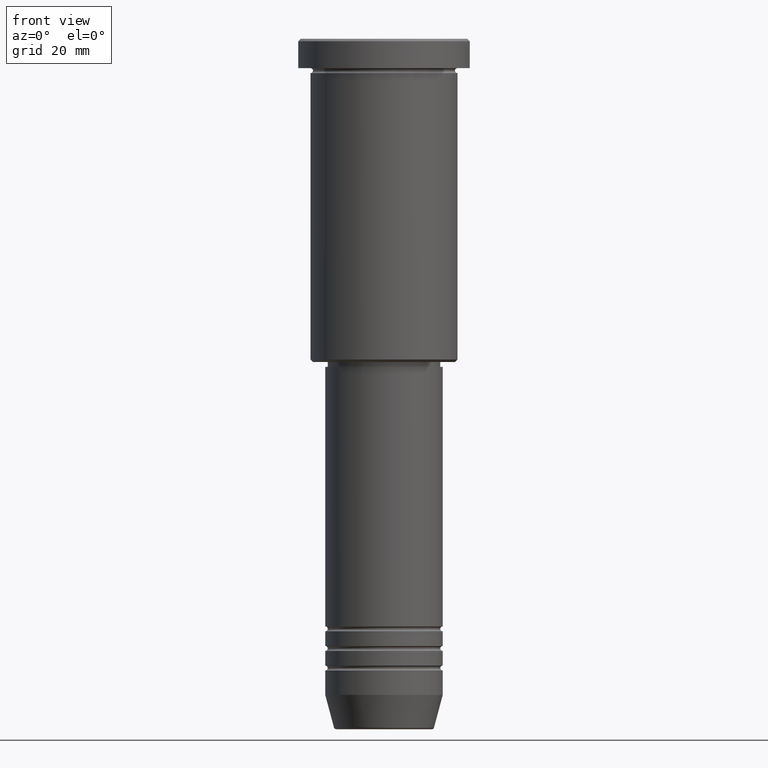
[diagram: clean part render]
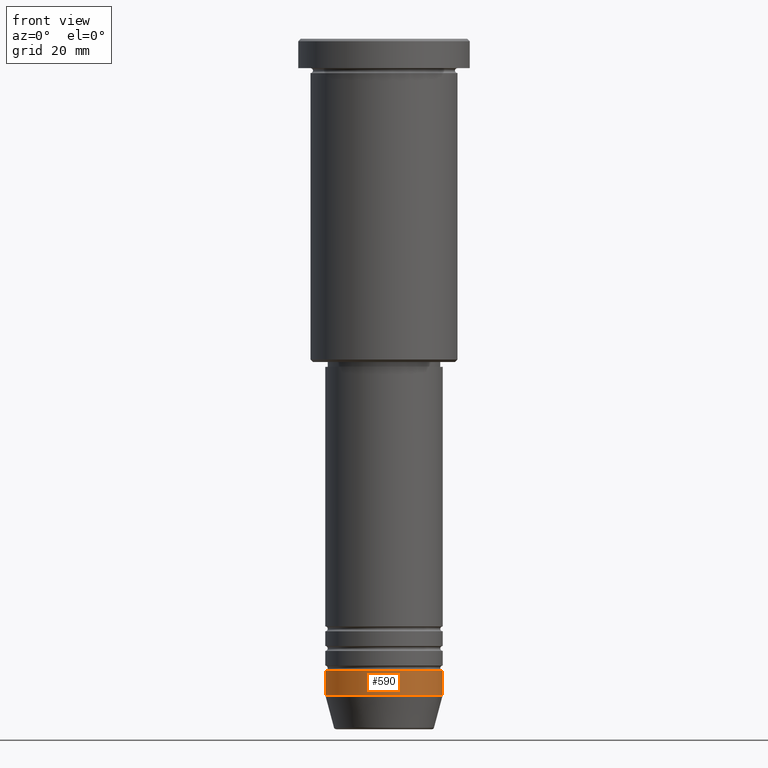
[diagram: same view with one face highlighted and labeled with its STEP entity id]
A machine part, front view. The second image highlights one B-rep face of the part: STEP entity #590.
In plain terms, the highlighted cylindrical surface (partial cylindrical patch) has radius 12 mm, axis along (-0, -0, 1).
Its self-contained STEP definition (entity closure, byte-faithful):
#32 = LINE ( 'NONE', #512, #257 ) ;
#33 = AXIS2_PLACEMENT_3D ( 'NONE', #876, #708, #701 ) ;
#49 = CARTESIAN_POINT ( 'NONE',  ( -12.00000000000000000, 1.469576158976823947E-15, -129.0000000000000000 ) ) ;
#51 = VERTEX_POINT ( 'NONE', #1162 ) ;
#52 = DIRECTION ( 'NONE',  ( -0.000000000000000000, -0.000000000000000000, 1.000000000000000000 ) ) ;
#79 = AXIS2_PLACEMENT_3D ( 'NONE', #755, #874, #943 ) ;
#111 = EDGE_CURVE ( 'NONE', #230, #478, #1006, .T. ) ;
#132 = DIRECTION ( 'NONE',  ( -0.000000000000000000, -0.000000000000000000, 1.000000000000000000 ) ) ;
#140 = LINE ( 'NONE', #326, #464 ) ;
#194 = EDGE_CURVE ( 'NONE', #716, #51, #290, .T. ) ;
#207 = CARTESIAN_POINT ( 'NONE',  ( 0.000000000000000000, 0.000000000000000000, -129.0000000000000000 ) ) ;
#230 = VERTEX_POINT ( 'NONE', #639 ) ;
#257 = VECTOR ( 'NONE', #132, 1000.000000000000000 ) ;
#290 = CIRCLE ( 'NONE', #333, 12.00000000000000000 ) ;
#326 = CARTESIAN_POINT ( 'NONE',  ( 12.00000000000000000, 0.000000000000000000, 0.000000000000000000 ) ) ;
#333 = AXIS2_PLACEMENT_3D ( 'NONE', #207, #644, #366 ) ;
#366 = DIRECTION ( 'NONE',  ( 1.000000000000000000, 0.000000000000000000, 0.000000000000000000 ) ) ;
#403 = CYLINDRICAL_SURFACE ( 'NONE', #79, 12.00000000000000000 ) ;
#464 = VECTOR ( 'NONE', #52, 1000.000000000000000 ) ;
#478 = VERTEX_POINT ( 'NONE', #738 ) ;
#485 = ORIENTED_EDGE ( 'NONE', *, *, #636, .F. ) ;
#512 = CARTESIAN_POINT ( 'NONE',  ( -12.00000000000000000, 1.469576158976823947E-15, 0.000000000000000000 ) ) ;
#517 = ORIENTED_EDGE ( 'NONE', *, *, #641, .T. ) ;
#583 = FACE_OUTER_BOUND ( 'NONE', #587, .T. ) ;
#587 = EDGE_LOOP ( 'NONE', ( #485, #873, #517, #1084 ) ) ;
#590 = ADVANCED_FACE ( 'NONE', ( #583 ), #403, .T. ) ;
#636 = EDGE_CURVE ( 'NONE', #230, #716, #32, .T. ) ;
#639 = CARTESIAN_POINT ( 'NONE',  ( -12.00000000000000000, 1.469576158976823947E-15, -134.0000000000000000 ) ) ;
#641 = EDGE_CURVE ( 'NONE', #478, #51, #140, .T. ) ;
#644 = DIRECTION ( 'NONE',  ( -0.000000000000000000, -0.000000000000000000, 1.000000000000000000 ) ) ;
#701 = DIRECTION ( 'NONE',  ( 1.000000000000000000, 0.000000000000000000, 0.000000000000000000 ) ) ;
#708 = DIRECTION ( 'NONE',  ( -0.000000000000000000, -0.000000000000000000, 1.000000000000000000 ) ) ;
#716 = VERTEX_POINT ( 'NONE', #49 ) ;
#738 = CARTESIAN_POINT ( 'NONE',  ( 12.00000000000000000, 0.000000000000000000, -134.0000000000000000 ) ) ;
#755 = CARTESIAN_POINT ( 'NONE',  ( 0.000000000000000000, 0.000000000000000000, 0.000000000000000000 ) ) ;
#873 = ORIENTED_EDGE ( 'NONE', *, *, #111, .T. ) ;
#874 = DIRECTION ( 'NONE',  ( -0.000000000000000000, -0.000000000000000000, 1.000000000000000000 ) ) ;
#876 = CARTESIAN_POINT ( 'NONE',  ( 0.000000000000000000, 0.000000000000000000, -134.0000000000000000 ) ) ;
#943 = DIRECTION ( 'NONE',  ( 1.000000000000000000, 0.000000000000000000, 0.000000000000000000 ) ) ;
#1006 = CIRCLE ( 'NONE', #33, 12.00000000000000000 ) ;
#1084 = ORIENTED_EDGE ( 'NONE', *, *, #194, .F. ) ;
#1162 = CARTESIAN_POINT ( 'NONE',  ( 12.00000000000000000, 0.000000000000000000, -129.0000000000000000 ) ) ;